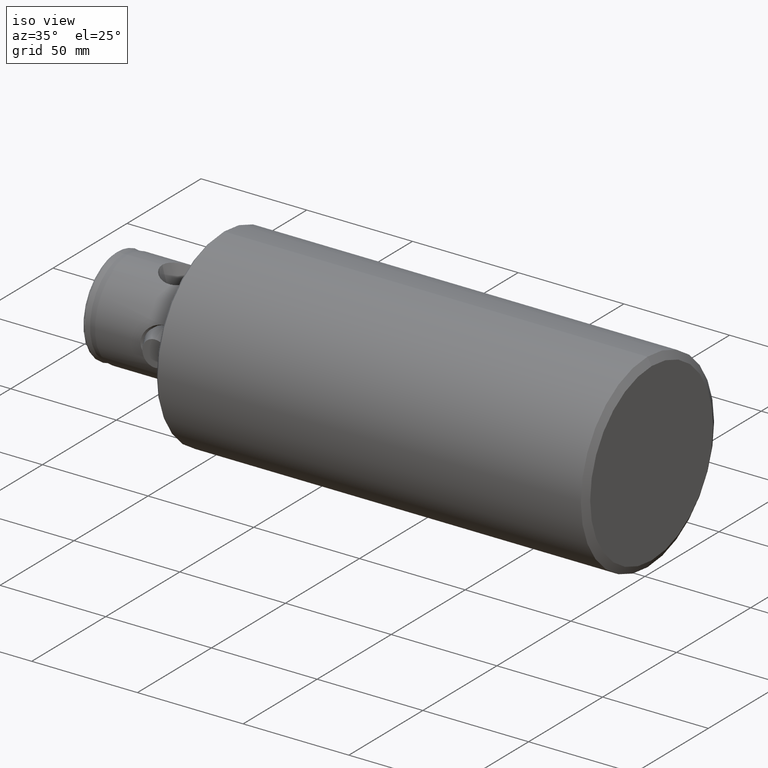
[diagram: clean part render]
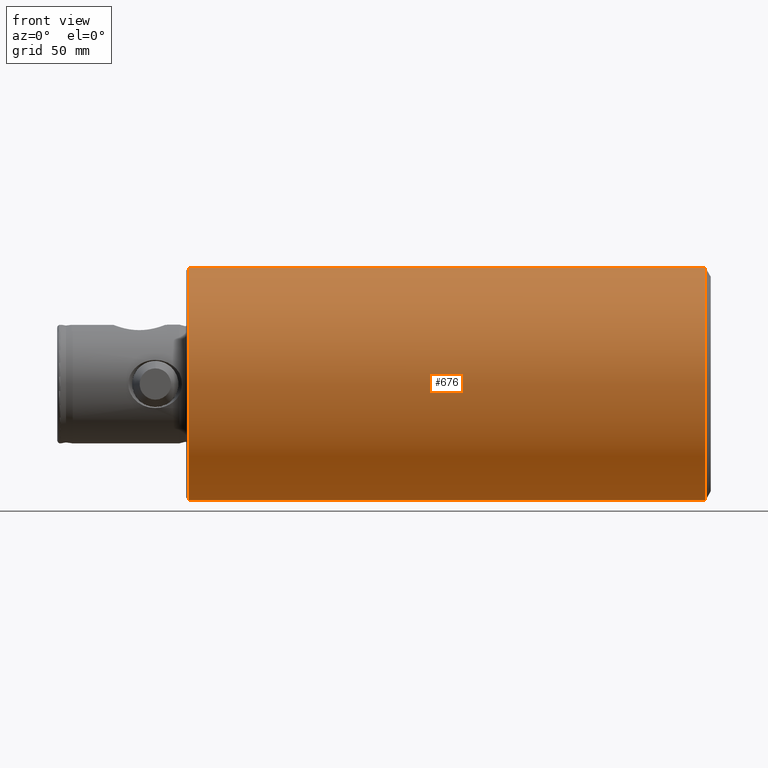
[diagram: tour spotlight — one face highlighted and labeled with its STEP entity id]
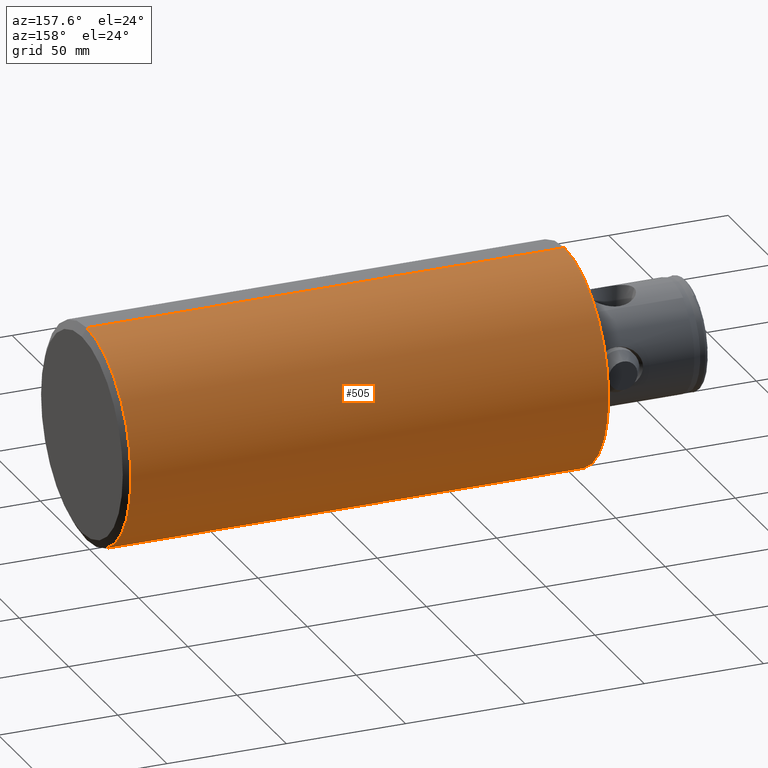
[diagram: tour spotlight — one face highlighted and labeled with its STEP entity id]
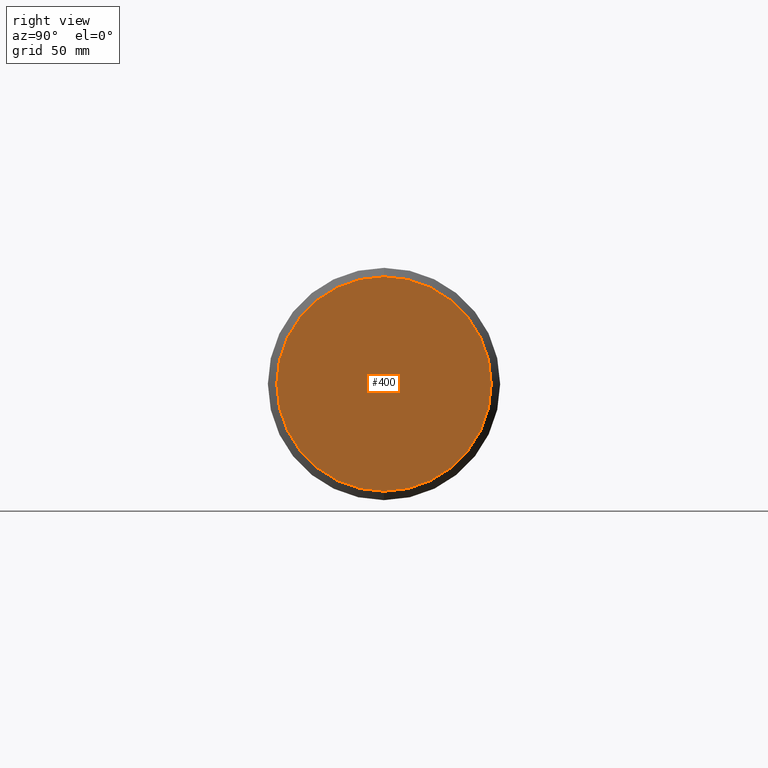
[diagram: tour spotlight — one face highlighted and labeled with its STEP entity id]
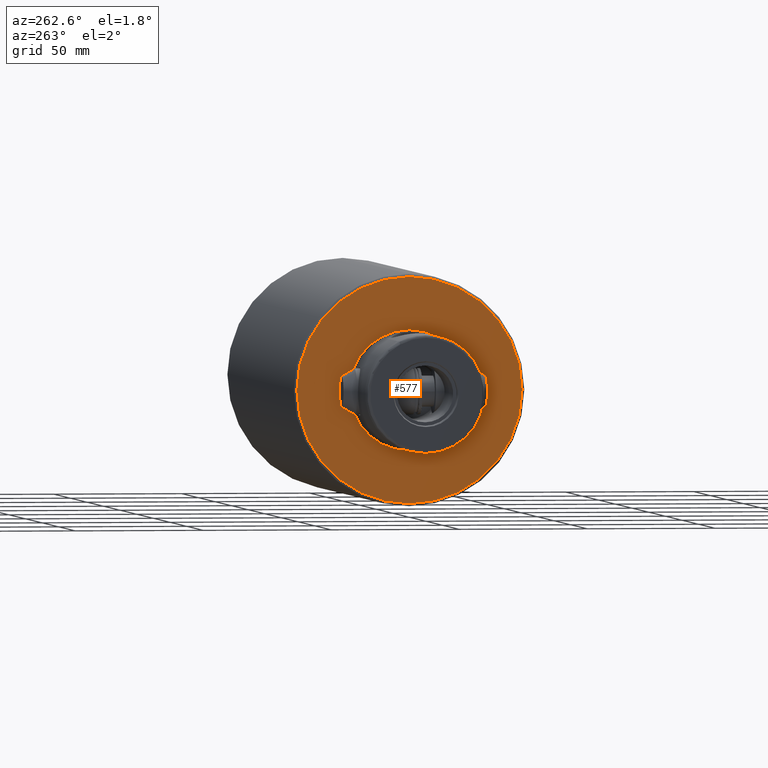
[diagram: tour spotlight — one face highlighted and labeled with its STEP entity id]
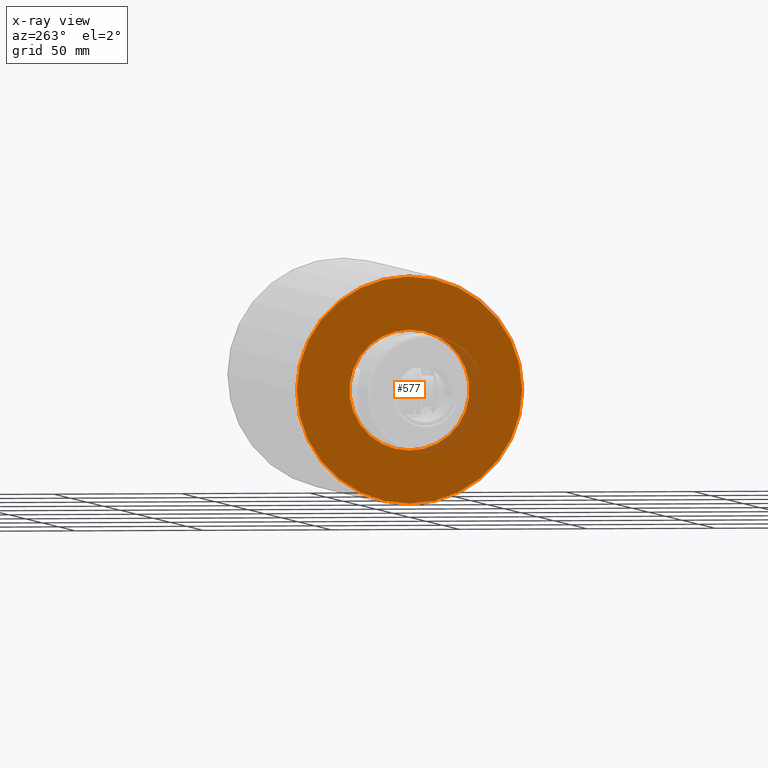
[diagram: x-ray of the same camera — body ghosted, this tour face saturated]
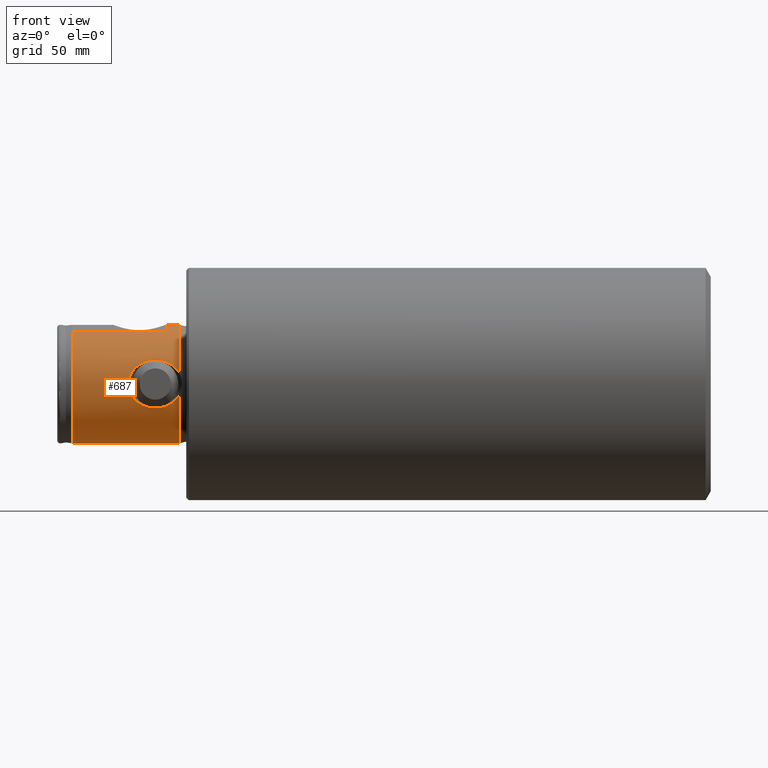
[diagram: tour spotlight — one face highlighted and labeled with its STEP entity id]
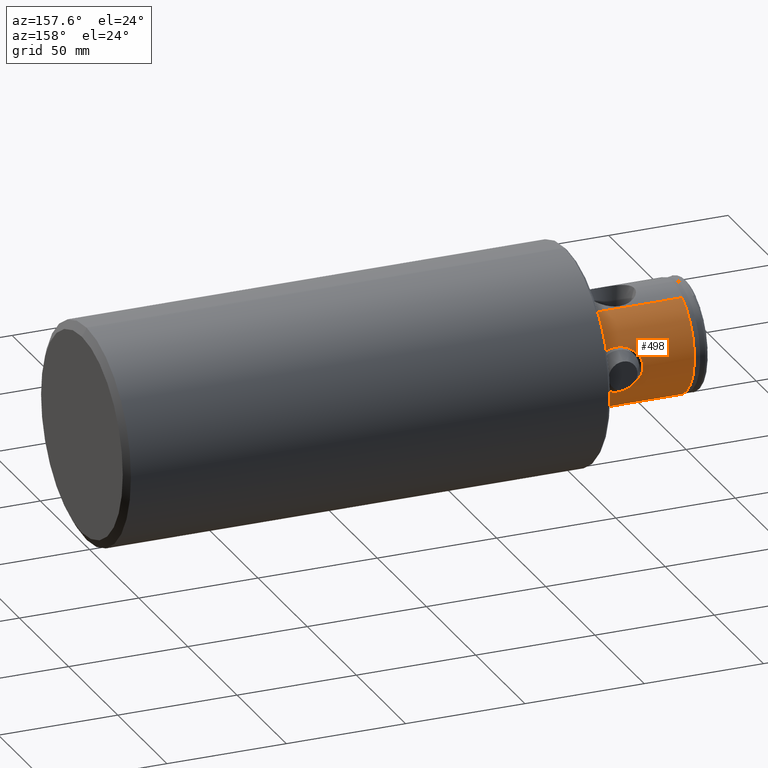
[diagram: tour spotlight — one face highlighted and labeled with its STEP entity id]
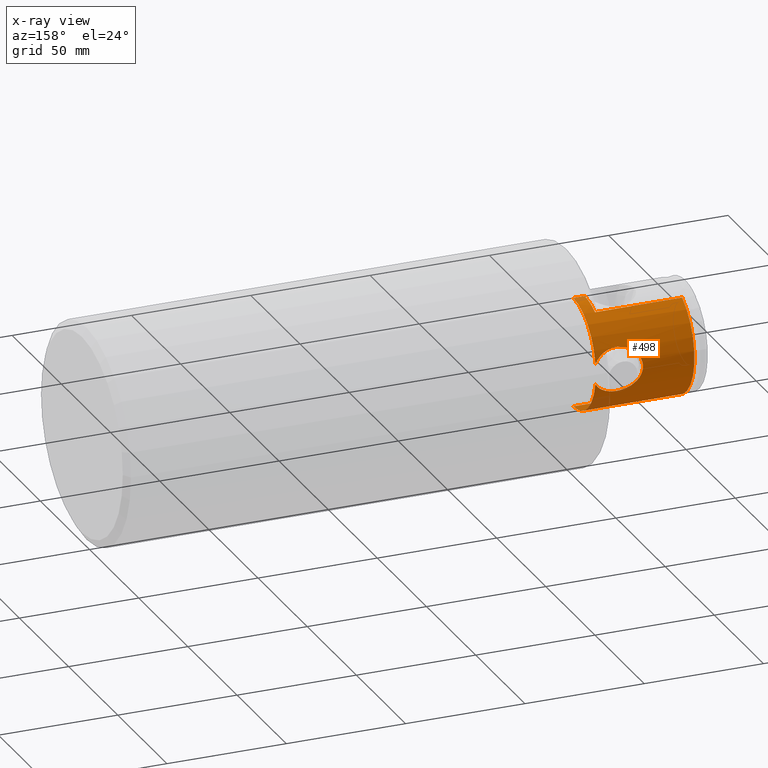
[diagram: x-ray of the same camera — body ghosted, this tour face saturated]
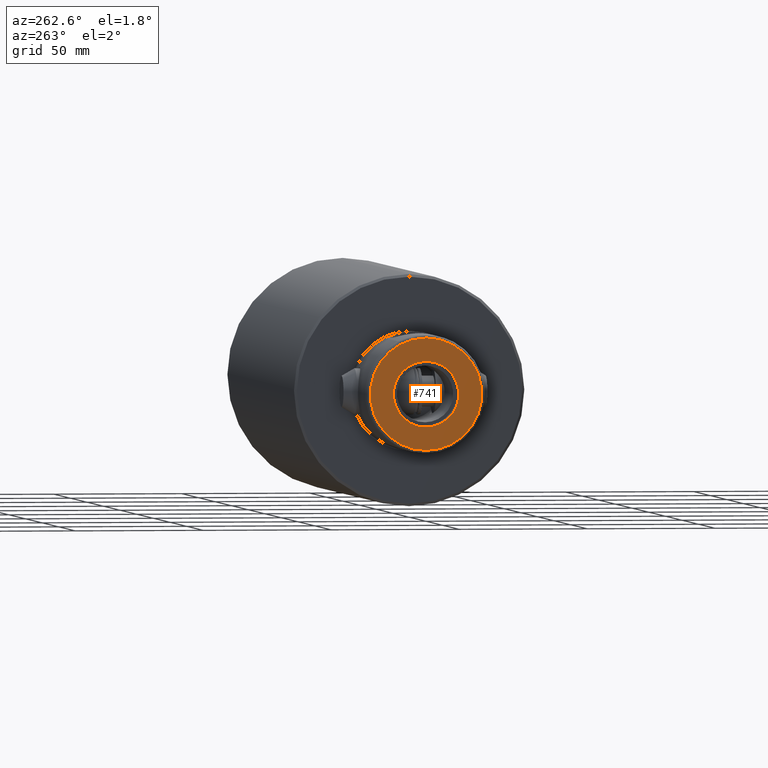
[diagram: tour spotlight — one face highlighted and labeled with its STEP entity id]
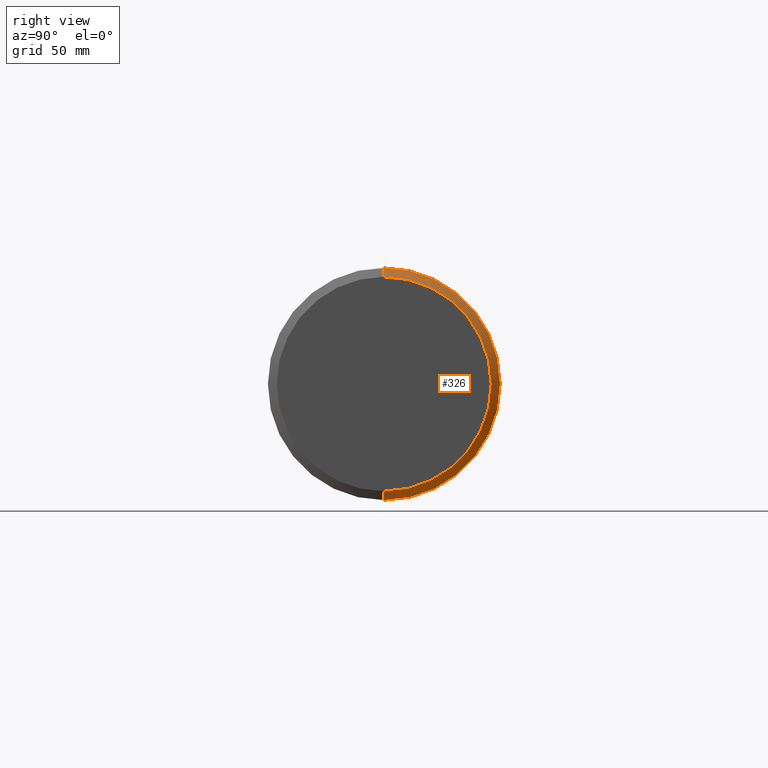
[diagram: tour spotlight — one face highlighted and labeled with its STEP entity id]
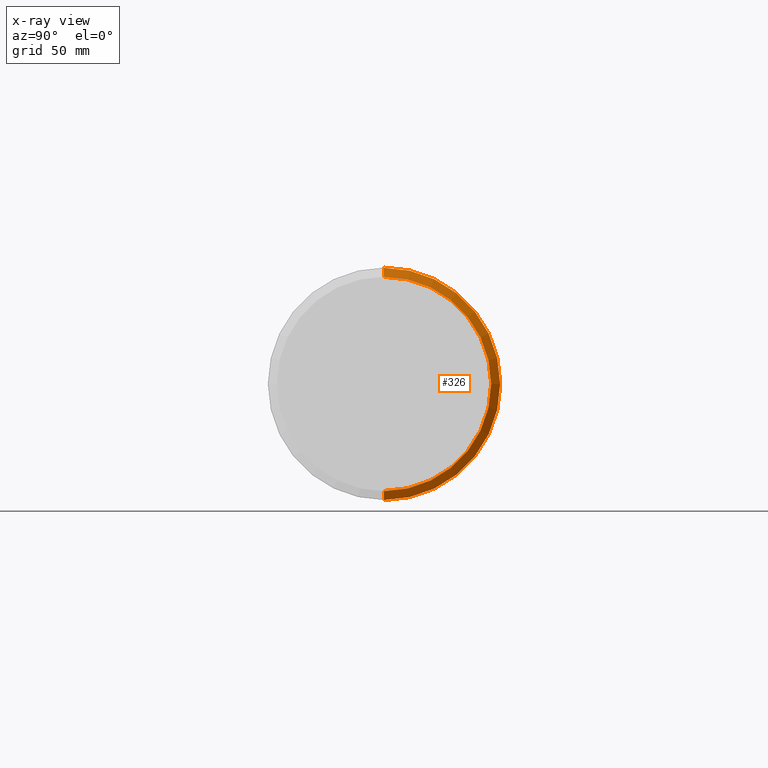
[diagram: x-ray of the same camera — body ghosted, this tour face saturated]
A machine part: a face-by-face anatomy tour. The part has 81 B-rep faces; the first image is the clean iso view, then the 8 largest visible faces are spotlighted one at a time (largest first), each with its STEP entity span.

Face 1 — front view, entity #676. In plain terms, the highlighted cylindrical surface (partial cylindrical patch) has radius 45 mm, axis along (-1, -0, -0).
Definition (entity closure, byte-faithful):
#297 = VERTEX_POINT ( 'NONE', #1563 ) ;
#302 = VERTEX_POINT ( 'NONE', #1634 ) ;
#306 = VERTEX_POINT ( 'NONE', #1632 ) ;
#393 = VERTEX_POINT ( 'NONE', #1821 ) ;
#433 = EDGE_CURVE ( 'NONE', #297, #306, #1940, .T. ) ;
#441 = EDGE_CURVE ( 'NONE', #302, #393, #1934, .T. ) ;
#618 = ORIENTED_EDGE ( 'NONE', *, *, #620, .F. ) ;
#620 = EDGE_CURVE ( 'NONE', #393, #306, #2262, .T. ) ;
#622 = ORIENTED_EDGE ( 'NONE', *, *, #433, .T. ) ;
#629 = ORIENTED_EDGE ( 'NONE', *, *, #630, .T. ) ;
#630 = EDGE_CURVE ( 'NONE', #302, #297, #2290, .T. ) ;
#631 = EDGE_LOOP ( 'NONE', ( #677, #629, #622, #618 ) ) ;
#676 = ADVANCED_FACE ( 'NONE', ( #2436 ), #2345, .T. ) ;
#677 = ORIENTED_EDGE ( 'NONE', *, *, #441, .F. ) ;
#1563 = CARTESIAN_POINT ( 'NONE',  ( 251.1999999999999300, 0.0000000000000000000, 45.00000000000005700 ) ) ;
#1632 = CARTESIAN_POINT ( 'NONE',  ( 50.99999999999999300, 0.0000000000000000000, 45.00000000000000000 ) ) ;
#1634 = CARTESIAN_POINT ( 'NONE',  ( 251.1999999999999300, 5.510728592200705600E-015, -45.00000000000006400 ) ) ;
#1821 = CARTESIAN_POINT ( 'NONE',  ( 50.99999999999999300, 5.510728592200697700E-015, -45.00000000000000000 ) ) ;
#1887 = DIRECTION ( 'NONE',  ( -1.000000000000000000, -0.0000000000000000000, -0.0000000000000000000 ) ) ;
#1896 = VECTOR ( 'NONE', #1919, 1000.000000000000000 ) ;
#1897 = CARTESIAN_POINT ( 'NONE',  ( 0.0000000000000000000, 0.0000000000000000000, 45.00000000000000000 ) ) ;
#1919 = DIRECTION ( 'NONE',  ( -1.000000000000000000, -0.0000000000000000000, -0.0000000000000000000 ) ) ;
#1932 = VECTOR ( 'NONE', #1887, 1000.000000000000000 ) ;
#1933 = CARTESIAN_POINT ( 'NONE',  ( 0.0000000000000000000, 5.510728592200697700E-015, -45.00000000000000000 ) ) ;
#1934 = LINE ( 'NONE', #1933, #1932 ) ;
#1940 = LINE ( 'NONE', #1897, #1896 ) ;
#2251 = AXIS2_PLACEMENT_3D ( 'NONE', #2282, #2309, #2308 ) ;
#2262 = CIRCLE ( 'NONE', #2251, 45.00000000000000000 ) ;
#2282 = CARTESIAN_POINT ( 'NONE',  ( 50.99999999999999300, 0.0000000000000000000, 0.0000000000000000000 ) ) ;
#2287 = DIRECTION ( 'NONE',  ( -1.000000000000000000, -0.0000000000000000000, -0.0000000000000000000 ) ) ;
#2288 = CARTESIAN_POINT ( 'NONE',  ( 251.1999999999999300, 0.0000000000000000000, 0.0000000000000000000 ) ) ;
#2289 = AXIS2_PLACEMENT_3D ( 'NONE', #2288, #2287, #2296 ) ;
#2290 = CIRCLE ( 'NONE', #2289, 45.00000000000005700 ) ;
#2296 = DIRECTION ( 'NONE',  ( 0.0000000000000000000, 0.0000000000000000000, 1.000000000000000000 ) ) ;
#2308 = DIRECTION ( 'NONE',  ( 0.0000000000000000000, 0.0000000000000000000, 1.000000000000000000 ) ) ;
#2309 = DIRECTION ( 'NONE',  ( -1.000000000000000000, -0.0000000000000000000, -0.0000000000000000000 ) ) ;
#2345 = CYLINDRICAL_SURFACE ( 'NONE', #2417, 45.00000000000000000 ) ;
#2415 = DIRECTION ( 'NONE',  ( 0.0000000000000000000, 0.0000000000000000000, 1.000000000000000000 ) ) ;
#2416 = DIRECTION ( 'NONE',  ( -1.000000000000000000, -0.0000000000000000000, -0.0000000000000000000 ) ) ;
#2417 = AXIS2_PLACEMENT_3D ( 'NONE', #2472, #2416, #2415 ) ;
#2436 = FACE_OUTER_BOUND ( 'NONE', #631, .T. ) ;
#2472 = CARTESIAN_POINT ( 'NONE',  ( 0.0000000000000000000, 0.0000000000000000000, 0.0000000000000000000 ) ) ;

Face 2 — auxiliary view, entity #505. In plain terms, the highlighted cylindrical surface (partial cylindrical patch) has radius 45 mm, axis along (-1, -0, -0).
Definition (entity closure, byte-faithful):
#296 = EDGE_CURVE ( 'NONE', #297, #302, #1566, .T. ) ;
#297 = VERTEX_POINT ( 'NONE', #1563 ) ;
#302 = VERTEX_POINT ( 'NONE', #1634 ) ;
#306 = VERTEX_POINT ( 'NONE', #1632 ) ;
#308 = EDGE_CURVE ( 'NONE', #306, #393, #1582, .T. ) ;
#393 = VERTEX_POINT ( 'NONE', #1821 ) ;
#433 = EDGE_CURVE ( 'NONE', #297, #306, #1940, .T. ) ;
#441 = EDGE_CURVE ( 'NONE', #302, #393, #1934, .T. ) ;
#456 = ORIENTED_EDGE ( 'NONE', *, *, #308, .F. ) ;
#485 = ORIENTED_EDGE ( 'NONE', *, *, #296, .T. ) ;
#504 = ORIENTED_EDGE ( 'NONE', *, *, #433, .F. ) ;
#505 = ADVANCED_FACE ( 'NONE', ( #3306 ), #3377, .T. ) ;
#533 = ORIENTED_EDGE ( 'NONE', *, *, #441, .T. ) ;
#535 = EDGE_LOOP ( 'NONE', ( #485, #533, #456, #504 ) ) ;
#1493 = DIRECTION ( 'NONE',  ( 0.0000000000000000000, 0.0000000000000000000, 1.000000000000000000 ) ) ;
#1494 = DIRECTION ( 'NONE',  ( -1.000000000000000000, -0.0000000000000000000, -0.0000000000000000000 ) ) ;
#1495 = CARTESIAN_POINT ( 'NONE',  ( 251.1999999999999300, 0.0000000000000000000, 0.0000000000000000000 ) ) ;
#1563 = CARTESIAN_POINT ( 'NONE',  ( 251.1999999999999300, 0.0000000000000000000, 45.00000000000005700 ) ) ;
#1565 = AXIS2_PLACEMENT_3D ( 'NONE', #1495, #1494, #1493 ) ;
#1566 = CIRCLE ( 'NONE', #1565, 45.00000000000005700 ) ;
#1578 = DIRECTION ( 'NONE',  ( 0.0000000000000000000, 0.0000000000000000000, 1.000000000000000000 ) ) ;
#1579 = DIRECTION ( 'NONE',  ( -1.000000000000000000, -0.0000000000000000000, -0.0000000000000000000 ) ) ;
#1580 = CARTESIAN_POINT ( 'NONE',  ( 50.99999999999999300, 0.0000000000000000000, 0.0000000000000000000 ) ) ;
#1581 = AXIS2_PLACEMENT_3D ( 'NONE', #1580, #1579, #1578 ) ;
#1582 = CIRCLE ( 'NONE', #1581, 45.00000000000000000 ) ;
#1632 = CARTESIAN_POINT ( 'NONE',  ( 50.99999999999999300, 0.0000000000000000000, 45.00000000000000000 ) ) ;
#1634 = CARTESIAN_POINT ( 'NONE',  ( 251.1999999999999300, 5.510728592200705600E-015, -45.00000000000006400 ) ) ;
#1821 = CARTESIAN_POINT ( 'NONE',  ( 50.99999999999999300, 5.510728592200697700E-015, -45.00000000000000000 ) ) ;
#1887 = DIRECTION ( 'NONE',  ( -1.000000000000000000, -0.0000000000000000000, -0.0000000000000000000 ) ) ;
#1896 = VECTOR ( 'NONE', #1919, 1000.000000000000000 ) ;
#1897 = CARTESIAN_POINT ( 'NONE',  ( 0.0000000000000000000, 0.0000000000000000000, 45.00000000000000000 ) ) ;
#1919 = DIRECTION ( 'NONE',  ( -1.000000000000000000, -0.0000000000000000000, -0.0000000000000000000 ) ) ;
#1932 = VECTOR ( 'NONE', #1887, 1000.000000000000000 ) ;
#1933 = CARTESIAN_POINT ( 'NONE',  ( 0.0000000000000000000, 5.510728592200697700E-015, -45.00000000000000000 ) ) ;
#1934 = LINE ( 'NONE', #1933, #1932 ) ;
#1940 = LINE ( 'NONE', #1897, #1896 ) ;
#3305 = CARTESIAN_POINT ( 'NONE',  ( 0.0000000000000000000, 0.0000000000000000000, 0.0000000000000000000 ) ) ;
#3306 = FACE_OUTER_BOUND ( 'NONE', #535, .T. ) ;
#3374 = DIRECTION ( 'NONE',  ( 0.0000000000000000000, 0.0000000000000000000, 1.000000000000000000 ) ) ;
#3375 = DIRECTION ( 'NONE',  ( -1.000000000000000000, -0.0000000000000000000, -0.0000000000000000000 ) ) ;
#3376 = AXIS2_PLACEMENT_3D ( 'NONE', #3305, #3375, #3374 ) ;
#3377 = CYLINDRICAL_SURFACE ( 'NONE', #3376, 45.00000000000000000 ) ;

Face 3 — right view, entity #400. In plain terms, the highlighted planar face has unit normal (-1, 0, 0).
Definition (entity closure, byte-faithful):
#214 = ORIENTED_EDGE ( 'NONE', *, *, #298, .F. ) ;
#282 = EDGE_CURVE ( 'NONE', #299, #328, #1567, .T. ) ;
#298 = EDGE_CURVE ( 'NONE', #328, #299, #1576, .T. ) ;
#299 = VERTEX_POINT ( 'NONE', #1577 ) ;
#328 = VERTEX_POINT ( 'NONE', #1558 ) ;
#353 = ORIENTED_EDGE ( 'NONE', *, *, #282, .F. ) ;
#399 = EDGE_LOOP ( 'NONE', ( #214, #353 ) ) ;
#400 = ADVANCED_FACE ( 'NONE', ( #1858 ), #1786, .F. ) ;
#1518 = DIRECTION ( 'NONE',  ( 0.0000000000000000000, 0.0000000000000000000, 1.000000000000000000 ) ) ;
#1519 = DIRECTION ( 'NONE',  ( -1.000000000000000000, -0.0000000000000000000, -0.0000000000000000000 ) ) ;
#1520 = CARTESIAN_POINT ( 'NONE',  ( 253.1999999999999900, 0.0000000000000000000, 0.0000000000000000000 ) ) ;
#1521 = AXIS2_PLACEMENT_3D ( 'NONE', #1520, #1519, #1518 ) ;
#1545 = DIRECTION ( 'NONE',  ( 0.0000000000000000000, 0.0000000000000000000, 1.000000000000000000 ) ) ;
#1546 = DIRECTION ( 'NONE',  ( -1.000000000000000000, -0.0000000000000000000, -0.0000000000000000000 ) ) ;
#1558 = CARTESIAN_POINT ( 'NONE',  ( 253.1999999999999900, 0.0000000000000000000, 41.53589838486234200 ) ) ;
#1567 = CIRCLE ( 'NONE', #1631, 41.53589838486234200 ) ;
#1576 = CIRCLE ( 'NONE', #1521, 41.53589838486234200 ) ;
#1577 = CARTESIAN_POINT ( 'NONE',  ( 253.1999999999999900, 5.298620549791504100E-015, -41.53589838486234200 ) ) ;
#1630 = CARTESIAN_POINT ( 'NONE',  ( 253.1999999999999900, 0.0000000000000000000, 0.0000000000000000000 ) ) ;
#1631 = AXIS2_PLACEMENT_3D ( 'NONE', #1630, #1546, #1545 ) ;
#1724 = DIRECTION ( 'NONE',  ( -0.0000000000000000000, 0.0000000000000000000, 1.000000000000000000 ) ) ;
#1725 = DIRECTION ( 'NONE',  ( -1.000000000000000000, 0.0000000000000000000, -0.0000000000000000000 ) ) ;
#1726 = CARTESIAN_POINT ( 'NONE',  ( 253.1999999999999900, 6.201406575756518900E-014, 0.0000000000000000000 ) ) ;
#1727 = AXIS2_PLACEMENT_3D ( 'NONE', #1726, #1725, #1724 ) ;
#1786 = PLANE ( 'NONE',  #1727 ) ;
#1858 = FACE_OUTER_BOUND ( 'NONE', #399, .T. ) ;

Face 4 — auxiliary view, entity #577. An x-ray twin of the same camera follows (body ghosted, this face saturated) — the face is partly hidden behind the body. In plain terms, the highlighted planar face has unit normal (1, 0, 0).
Definition (entity closure, byte-faithful):
#305 = VERTEX_POINT ( 'NONE', #1633 ) ;
#309 = EDGE_CURVE ( 'NONE', #312, #437, #1620, .T. ) ;
#312 = VERTEX_POINT ( 'NONE', #1543 ) ;
#426 = VERTEX_POINT ( 'NONE', #1810 ) ;
#437 = VERTEX_POINT ( 'NONE', #1951 ) ;
#438 = EDGE_CURVE ( 'NONE', #305, #426, #1947, .T. ) ;
#572 = ORIENTED_EDGE ( 'NONE', *, *, #576, .F. ) ;
#575 = EDGE_LOOP ( 'NONE', ( #572, #652 ) ) ;
#576 = EDGE_CURVE ( 'NONE', #437, #312, #2175, .T. ) ;
#577 = ADVANCED_FACE ( 'NONE', ( #2128, #2171 ), #2168, .F. ) ;
#578 = ORIENTED_EDGE ( 'NONE', *, *, #438, .T. ) ;
#621 = EDGE_CURVE ( 'NONE', #426, #305, #2291, .T. ) ;
#652 = ORIENTED_EDGE ( 'NONE', *, *, #309, .F. ) ;
#660 = EDGE_LOOP ( 'NONE', ( #710, #578 ) ) ;
#710 = ORIENTED_EDGE ( 'NONE', *, *, #621, .T. ) ;
#1543 = CARTESIAN_POINT ( 'NONE',  ( 49.99999999999998600, 2.869538338652060700E-015, -23.43233259973981900 ) ) ;
#1617 = DIRECTION ( 'NONE',  ( 0.0000000000000000000, 0.0000000000000000000, 1.000000000000000000 ) ) ;
#1618 = DIRECTION ( 'NONE',  ( -1.000000000000000000, -0.0000000000000000000, -0.0000000000000000000 ) ) ;
#1619 = AXIS2_PLACEMENT_3D ( 'NONE', #1625, #1618, #1617 ) ;
#1620 = CIRCLE ( 'NONE', #1619, 23.43233259973981900 ) ;
#1625 = CARTESIAN_POINT ( 'NONE',  ( 49.99999999999998600, 0.0000000000000000000, 0.0000000000000000000 ) ) ;
#1633 = CARTESIAN_POINT ( 'NONE',  ( 49.99999999999998600, 5.449498274509578800E-015, 44.00000000000000000 ) ) ;
#1810 = CARTESIAN_POINT ( 'NONE',  ( 49.99999999999998600, 0.0000000000000000000, -44.00000000000000000 ) ) ;
#1943 = DIRECTION ( 'NONE',  ( 0.0000000000000000000, 0.0000000000000000000, 1.000000000000000000 ) ) ;
#1944 = DIRECTION ( 'NONE',  ( -1.000000000000000000, -0.0000000000000000000, -0.0000000000000000000 ) ) ;
#1945 = CARTESIAN_POINT ( 'NONE',  ( 49.99999999999998600, 0.0000000000000000000, 0.0000000000000000000 ) ) ;
#1946 = AXIS2_PLACEMENT_3D ( 'NONE', #1945, #1944, #1943 ) ;
#1947 = CIRCLE ( 'NONE', #1946, 44.00000000000000000 ) ;
#1951 = CARTESIAN_POINT ( 'NONE',  ( 49.99999999999998600, 0.0000000000000000000, 23.43233259973981900 ) ) ;
#2128 = FACE_BOUND ( 'NONE', #575, .T. ) ;
#2134 = CARTESIAN_POINT ( 'NONE',  ( 49.99999999999998600, 0.0000000000000000000, 0.0000000000000000000 ) ) ;
#2140 = DIRECTION ( 'NONE',  ( 0.0000000000000000000, 0.0000000000000000000, -1.000000000000000000 ) ) ;
#2141 = DIRECTION ( 'NONE',  ( 1.000000000000000000, 0.0000000000000000000, 0.0000000000000000000 ) ) ;
#2168 = PLANE ( 'NONE',  #2170 ) ;
#2169 = CARTESIAN_POINT ( 'NONE',  ( 49.99999999999998600, 23.43233259973981900, 0.0000000000000000000 ) ) ;
#2170 = AXIS2_PLACEMENT_3D ( 'NONE', #2169, #2141, #2140 ) ;
#2171 = FACE_OUTER_BOUND ( 'NONE', #660, .T. ) ;
#2172 = DIRECTION ( 'NONE',  ( 0.0000000000000000000, 0.0000000000000000000, 1.000000000000000000 ) ) ;
#2173 = DIRECTION ( 'NONE',  ( -1.000000000000000000, -0.0000000000000000000, -0.0000000000000000000 ) ) ;
#2174 = AXIS2_PLACEMENT_3D ( 'NONE', #2134, #2173, #2172 ) ;
#2175 = CIRCLE ( 'NONE', #2174, 23.43233259973981900 ) ;
#2266 = DIRECTION ( 'NONE',  ( -1.000000000000000000, -0.0000000000000000000, -0.0000000000000000000 ) ) ;
#2267 = CARTESIAN_POINT ( 'NONE',  ( 49.99999999999998600, 0.0000000000000000000, 0.0000000000000000000 ) ) ;
#2268 = AXIS2_PLACEMENT_3D ( 'NONE', #2267, #2266, #2326 ) ;
#2291 = CIRCLE ( 'NONE', #2268, 44.00000000000000000 ) ;
#2326 = DIRECTION ( 'NONE',  ( 0.0000000000000000000, 0.0000000000000000000, 1.000000000000000000 ) ) ;

Face 5 — front view, entity #687. In plain terms, the highlighted cylindrical surface (partial cylindrical patch) has radius 23 mm, axis along (-1, -0, -0).
Definition (entity closure, byte-faithful):
#217 = VERTEX_POINT ( 'NONE', #1175 ) ;
#220 = VERTEX_POINT ( 'NONE', #1190 ) ;
#221 = EDGE_CURVE ( 'NONE', #220, #217, #1214, .T. ) ;
#222 = VERTEX_POINT ( 'NONE', #1216 ) ;
#223 = VERTEX_POINT ( 'NONE', #1215 ) ;
#227 = EDGE_CURVE ( 'NONE', #223, #222, #1225, .T. ) ;
#517 = VERTEX_POINT ( 'NONE', #1995 ) ;
#523 = VERTEX_POINT ( 'NONE', #1963 ) ;
#554 = EDGE_CURVE ( 'NONE', #762, #523, #2088, .T. ) ;
#642 = ORIENTED_EDGE ( 'NONE', *, *, #221, .T. ) ;
#663 = ORIENTED_EDGE ( 'NONE', *, *, #713, .T. ) ;
#664 = ORIENTED_EDGE ( 'NONE', *, *, #692, .F. ) ;
#669 = VERTEX_POINT ( 'NONE', #2454 ) ;
#670 = ORIENTED_EDGE ( 'NONE', *, *, #671, .F. ) ;
#671 = EDGE_CURVE ( 'NONE', #523, #700, #2455, .T. ) ;
#684 = EDGE_LOOP ( 'NONE', ( #685, #689, #716, #719, #642, #693, #694, #663, #664, #670 ) ) ;
#685 = ORIENTED_EDGE ( 'NONE', *, *, #554, .F. ) ;
#687 = ADVANCED_FACE ( 'NONE', ( #2439 ), #2422, .T. ) ;
#689 = ORIENTED_EDGE ( 'NONE', *, *, #690, .T. ) ;
#690 = EDGE_CURVE ( 'NONE', #762, #223, #2418, .T. ) ;
#692 = EDGE_CURVE ( 'NONE', #700, #669, #2366, .T. ) ;
#693 = ORIENTED_EDGE ( 'NONE', *, *, #701, .T. ) ;
#694 = ORIENTED_EDGE ( 'NONE', *, *, #714, .T. ) ;
#700 = VERTEX_POINT ( 'NONE', #2477 ) ;
#701 = EDGE_CURVE ( 'NONE', #217, #760, #2370, .T. ) ;
#713 = EDGE_CURVE ( 'NONE', #517, #669, #2434, .T. ) ;
#714 = EDGE_CURVE ( 'NONE', #760, #517, #2444, .T. ) ;
#716 = ORIENTED_EDGE ( 'NONE', *, *, #227, .T. ) ;
#719 = ORIENTED_EDGE ( 'NONE', *, *, #720, .T. ) ;
#720 = EDGE_CURVE ( 'NONE', #222, #220, #2451, .T. ) ;
#760 = VERTEX_POINT ( 'NONE', #2578 ) ;
#762 = VERTEX_POINT ( 'NONE', #2577 ) ;
#1175 = CARTESIAN_POINT ( 'NONE',  ( 47.31994326666491400, -22.60442801480920800, 4.247332589203312900 ) ) ;
#1190 = CARTESIAN_POINT ( 'NONE',  ( 37.99999999999999300, -21.02302948290293100, 9.329106675400030500 ) ) ;
#1201 = CARTESIAN_POINT ( 'NONE',  ( 38.93219336601070100, -21.03538554364934000, 9.301414064695467900 ) ) ;
#1202 = CARTESIAN_POINT ( 'NONE',  ( 38.46619726099965700, -21.02302948290293500, 9.329106675400035800 ) ) ;
#1203 = CARTESIAN_POINT ( 'NONE',  ( 37.99999999999999300, -21.02302948290293100, 9.329106675400030500 ) ) ;
#1214 = B_SPLINE_CURVE_WITH_KNOTS ( 'NONE', 3,
 ( #1203, #1202, #1201, #1246, #1245, #1244, #1243, #1242, #1241, #1240, #1239, #1238, #1237, #1236, #1235, #1234 ),
 .UNSPECIFIED., .F., .F.,
 ( 4, 2, 2, 2, 2, 2, 2, 4 ),
 ( 0.02345269837733418900, 0.02485111393181970200, 0.02624952948630521200, 0.02764794504079072500, 0.02904636059527623800, 0.03184319170424727800, 0.03324160725873279200, 0.03464002281321830500 ),
 .UNSPECIFIED. ) ;
#1215 = CARTESIAN_POINT ( 'NONE',  ( 47.31994326667239600, -22.60442801481164900, -4.247332589190292200 ) ) ;
#1216 = CARTESIAN_POINT ( 'NONE',  ( 37.99999999999999300, -21.02302948290293500, -9.329106675400032200 ) ) ;
#1225 = B_SPLINE_CURVE_WITH_KNOTS ( 'NONE', 3,
 ( #1261, #1285, #1266, #1253, #1252, #1256, #1268, #1267, #1260, #1265, #1264, #1263, #1262, #1259, #1258, #1257 ),
 .UNSPECIFIED., .F., .F.,
 ( 4, 2, 2, 2, 2, 2, 2, 4 ),
 ( 0.04352184889243164400, 0.04491540207815871600, 0.04630895526388578700, 0.04770250844961285800, 0.04909606163533993000, 0.05048961482106699400, 0.05188316800679406600, 0.05467027437824818800 ),
 .UNSPECIFIED. ) ;
#1234 = CARTESIAN_POINT ( 'NONE',  ( 47.31994326666491400, -22.60442801480920800, 4.247332589203312900 ) ) ;
#1235 = CARTESIAN_POINT ( 'NONE',  ( 47.09117652985198500, -22.52966422668212900, 4.645227651890146500 ) ) ;
#1236 = CARTESIAN_POINT ( 'NONE',  ( 46.83312668181601900, -22.44764819693650200, 5.024012716933397900 ) ) ;
#1237 = CARTESIAN_POINT ( 'NONE',  ( 46.26015209294288900, -22.27395163920986200, 5.745319114503146800 ) ) ;
#1238 = CARTESIAN_POINT ( 'NONE',  ( 45.94325045027338200, -22.18179861106122200, 6.088966382107917900 ) ) ;
#1239 = CARTESIAN_POINT ( 'NONE',  ( 44.94050913163979300, -21.90766243087735500, 7.034566917102954300 ) ) ;
#1240 = CARTESIAN_POINT ( 'NONE',  ( 44.19541750824311800, -21.72519002430095400, 7.565355621504313200 ) ) ;
#1241 = CARTESIAN_POINT ( 'NONE',  ( 42.96384847079258400, -21.48120669399792600, 8.222674795204524000 ) ) ;
#1242 = CARTESIAN_POINT ( 'NONE',  ( 42.54073490052644500, -21.40625954799838100, 8.414482499755486300 ) ) ;
#1243 = CARTESIAN_POINT ( 'NONE',  ( 41.67656531208709900, -21.27393331825578600, 8.743639101962612500 ) ) ;
#1244 = CARTESIAN_POINT ( 'NONE',  ( 41.23445744929128400, -21.21633876873586300, 8.881531672819260600 ) ) ;
#1245 = CARTESIAN_POINT ( 'NONE',  ( 40.32982575561659600, -21.12173547968730200, 9.104225718377939800 ) ) ;
#1246 = CARTESIAN_POINT ( 'NONE',  ( 39.86377557585608900, -21.08460747206793700, 9.189291393883605600 ) ) ;
#1252 = CARTESIAN_POINT ( 'NONE',  ( 45.93966587812343500, -22.18078657391648200, -6.092606297049838000 ) ) ;
#1253 = CARTESIAN_POINT ( 'NONE',  ( 46.25122867858282700, -22.27131297876147900, -5.755614247327033100 ) ) ;
#1256 = CARTESIAN_POINT ( 'NONE',  ( 45.27237314259004800, -21.99842200163292500, -6.721352093630998500 ) ) ;
#1257 = CARTESIAN_POINT ( 'NONE',  ( 37.99999999999999300, -21.02302948290293500, -9.329106675400032200 ) ) ;
#1258 = CARTESIAN_POINT ( 'NONE',  ( 38.94410806159628900, -21.02302948290293800, -9.329106675400030500 ) ) ;
#1259 = CARTESIAN_POINT ( 'NONE',  ( 39.86807646693624500, -21.07382885779066200, -9.216915442110504800 ) ) ;
#1260 = CARTESIAN_POINT ( 'NONE',  ( 43.77045346099321000, -21.64086843575121600, -7.792681230712173800 ) ) ;
#1261 = CARTESIAN_POINT ( 'NONE',  ( 47.31994326667239600, -22.60442801481164900, -4.247332589190292200 ) ) ;
#1262 = CARTESIAN_POINT ( 'NONE',  ( 41.22216663415233700, -21.21486623906266900, -8.885037912541241300 ) ) ;
#1263 = CARTESIAN_POINT ( 'NONE',  ( 41.67137822948839000, -21.27318864679584800, -8.745464492953633600 ) ) ;
#1264 = CARTESIAN_POINT ( 'NONE',  ( 42.53961563051984000, -21.40603891627919700, -8.415058069580801700 ) ) ;
#1265 = CARTESIAN_POINT ( 'NONE',  ( 42.95930464578408000, -21.48044260649168500, -8.224576149942532100 ) ) ;
#1266 = CARTESIAN_POINT ( 'NONE',  ( 46.82741385150361400, -22.44585156441317500, -5.032119306049304800 ) ) ;
#1267 = CARTESIAN_POINT ( 'NONE',  ( 44.16192148421421800, -21.72690255488169700, -7.551288757119882800 ) ) ;
#1268 = CARTESIAN_POINT ( 'NONE',  ( 44.91553630357401500, -21.90630441512954000, -7.013849399182001700 ) ) ;
#1285 = CARTESIAN_POINT ( 'NONE',  ( 47.08987753996171900, -22.52923970078164800, -4.647486991125262500 ) ) ;
#1963 = CARTESIAN_POINT ( 'NONE',  ( 6.000000000000000000, 2.816594613791466100E-015, -22.99999999999998600 ) ) ;
#1995 = CARTESIAN_POINT ( 'NONE',  ( 42.50000000000000000, 0.0000000000000000000, 22.99999999999998900 ) ) ;
#2085 = DIRECTION ( 'NONE',  ( -1.000000000000000000, -0.0000000000000000000, -0.0000000000000000000 ) ) ;
#2086 = VECTOR ( 'NONE', #2085, 1000.000000000000000 ) ;
#2087 = CARTESIAN_POINT ( 'NONE',  ( 0.0000000000000000000, 2.816594613791466100E-015, -22.99999999999998900 ) ) ;
#2088 = LINE ( 'NONE', #2087, #2086 ) ;
#2112 = CARTESIAN_POINT ( 'NONE',  ( 37.67467929445299300, -21.02302948290294500, 9.329106675400034000 ) ) ;
#2113 = CARTESIAN_POINT ( 'NONE',  ( 37.34926045169535100, -21.02904338070736400, 9.315590198330813400 ) ) ;
#2123 = CARTESIAN_POINT ( 'NONE',  ( 37.99999999999999300, -21.02302948290293100, 9.329106675400030500 ) ) ;
#2334 = DIRECTION ( 'NONE',  ( 0.0000000000000000000, 0.0000000000000000000, 1.000000000000000000 ) ) ;
#2335 = DIRECTION ( 'NONE',  ( -1.000000000000000000, -0.0000000000000000000, -0.0000000000000000000 ) ) ;
#2336 = CARTESIAN_POINT ( 'NONE',  ( 6.000000000000000000, 0.0000000000000000000, 0.0000000000000000000 ) ) ;
#2337 = AXIS2_PLACEMENT_3D ( 'NONE', #2336, #2335, #2334 ) ;
#2339 = CARTESIAN_POINT ( 'NONE',  ( 47.31994326666491400, 0.0000000000000000000, 0.0000000000000000000 ) ) ;
#2347 = DIRECTION ( 'NONE',  ( 1.000000000000000000, 0.0000000000000000000, 0.0000000000000000000 ) ) ;
#2348 = VECTOR ( 'NONE', #2347, 1000.000000000000000 ) ;
#2349 = CARTESIAN_POINT ( 'NONE',  ( 0.0000000000000000000, -10.50000000000000000, 20.46338192968111300 ) ) ;
#2352 = DIRECTION ( 'NONE',  ( -1.000000000000000000, -0.0000000000000000000, -0.0000000000000000000 ) ) ;
#2353 = CARTESIAN_POINT ( 'NONE',  ( 0.0000000000000000000, 0.0000000000000000000, 0.0000000000000000000 ) ) ;
#2362 = DIRECTION ( 'NONE',  ( 0.0000000000000000000, 0.0000000000000000000, 1.000000000000000000 ) ) ;
#2363 = DIRECTION ( 'NONE',  ( -1.000000000000000000, -0.0000000000000000000, -0.0000000000000000000 ) ) ;
#2364 = CARTESIAN_POINT ( 'NONE',  ( 47.31994326666491400, 0.0000000000000000000, 0.0000000000000000000 ) ) ;
#2365 = AXIS2_PLACEMENT_3D ( 'NONE', #2364, #2363, #2362 ) ;
#2366 = LINE ( 'NONE', #2349, #2348 ) ;
#2367 = DIRECTION ( 'NONE',  ( 0.0000000000000000000, 0.0000000000000000000, 1.000000000000000000 ) ) ;
#2368 = DIRECTION ( 'NONE',  ( -1.000000000000000000, -0.0000000000000000000, -0.0000000000000000000 ) ) ;
#2369 = AXIS2_PLACEMENT_3D ( 'NONE', #2339, #2368, #2367 ) ;
#2370 = CIRCLE ( 'NONE', #2369, 22.99999999999999300 ) ;
#2385 = CARTESIAN_POINT ( 'NONE',  ( 36.69822406992789600, -21.05308807990714800, 9.261121344123521800 ) ) ;
#2386 = CARTESIAN_POINT ( 'NONE',  ( 36.37120823279914100, -21.07122888936861600, 9.219918385349206600 ) ) ;
#2387 = CARTESIAN_POINT ( 'NONE',  ( 35.39998326945026700, -21.14277504640236700, 9.055241084580817600 ) ) ;
#2388 = CARTESIAN_POINT ( 'NONE',  ( 34.77210464036043900, -21.21255598155631400, 8.892748959182583200 ) ) ;
#2389 = CARTESIAN_POINT ( 'NONE',  ( 33.85834670759243200, -21.34348862248444700, 8.571398500379171300 ) ) ;
#2390 = CARTESIAN_POINT ( 'NONE',  ( 33.55846634088093300, -21.39151247410070800, 8.451256365229980400 ) ) ;
#2391 = CARTESIAN_POINT ( 'NONE',  ( 32.96825497957615200, -21.49517057601162100, 8.184019916190951700 ) ) ;
#2392 = CARTESIAN_POINT ( 'NONE',  ( 32.67705798796485100, -21.55101693578773200, 8.036311123346985500 ) ) ;
#2393 = CARTESIAN_POINT ( 'NONE',  ( 31.83357783491359100, -21.72486292303570100, 7.559420660782887300 ) ) ;
#2394 = CARTESIAN_POINT ( 'NONE',  ( 31.30634380439214900, -21.84989007069774300, 7.195111343399609900 ) ) ;
#2395 = CARTESIAN_POINT ( 'NONE',  ( 30.56888459637243500, -22.04131034979981900, 6.574759988028477900 ) ) ;
#2396 = CARTESIAN_POINT ( 'NONE',  ( 30.33103363725489700, -22.10605344019972300, 6.354512261300782500 ) ) ;
#2397 = CARTESIAN_POINT ( 'NONE',  ( 29.87947400073054300, -22.23365425623983800, 5.892541318817851700 ) ) ;
#2398 = CARTESIAN_POINT ( 'NONE',  ( 29.66633803918195200, -22.29631722554484000, 5.651635319246516100 ) ) ;
#2399 = CARTESIAN_POINT ( 'NONE',  ( 29.26561079154685900, -22.41763984525953600, 5.149385145055092900 ) ) ;
#2400 = CARTESIAN_POINT ( 'NONE',  ( 29.07801527779107100, -22.47630363121442800, 4.888045158437270400 ) ) ;
#2401 = CARTESIAN_POINT ( 'NONE',  ( 28.72954003569505600, -22.58783317316477800, 4.343616342949869300 ) ) ;
#2402 = CARTESIAN_POINT ( 'NONE',  ( 28.56789879389732100, -22.64096007534570600, 4.058830409802394200 ) ) ;
#2403 = CARTESIAN_POINT ( 'NONE',  ( 28.13411307832687000, -22.78605615217954000, 3.185020368139582100 ) ) ;
#2404 = CARTESIAN_POINT ( 'NONE',  ( 27.91088036518950900, -22.86425977889280900, 2.575973568531907200 ) ) ;
#2405 = CARTESIAN_POINT ( 'NONE',  ( 27.68222849542476300, -22.94518811333196200, 1.618902779485936500 ) ) ;
#2406 = CARTESIAN_POINT ( 'NONE',  ( 27.62427475368554800, -22.96593789082250900, 1.292743308704329600 ) ) ;
#2407 = CARTESIAN_POINT ( 'NONE',  ( 27.54807650219822800, -22.99328354244361000, 0.6437393914532247900 ) ) ;
#2408 = CARTESIAN_POINT ( 'NONE',  ( 27.52921500374873500, -23.00009872422091900, 0.3186421900336501900 ) ) ;
#2409 = CARTESIAN_POINT ( 'NONE',  ( 27.52976871629866900, -22.99989911597083000, -0.3327383722122662100 ) ) ;
#2410 = CARTESIAN_POINT ( 'NONE',  ( 27.54918161106810000, -22.99288467257032700, -0.6590216660643852800 ) ) ;
#2411 = CARTESIAN_POINT ( 'NONE',  ( 27.62735768655272800, -22.96483390215701400, -1.312805762023274300 ) ) ;
#2412 = CARTESIAN_POINT ( 'NONE',  ( 27.68611526408022500, -22.94380443490967300, -1.637767216736179400 ) ) ;
#2413 = CARTESIAN_POINT ( 'NONE',  ( 27.91435184385474600, -22.86304771633514200, -2.585115613463223400 ) ) ;
#2414 = CARTESIAN_POINT ( 'NONE',  ( 28.13618848920580000, -22.78535896521714200, -3.189330235831057300 ) ) ;
#2418 = CIRCLE ( 'NONE', #2365, 22.99999999999999300 ) ;
#2419 = DIRECTION ( 'NONE',  ( 0.0000000000000000000, 0.0000000000000000000, 1.000000000000000000 ) ) ;
#2421 = AXIS2_PLACEMENT_3D ( 'NONE', #2353, #2352, #2419 ) ;
#2422 = CYLINDRICAL_SURFACE ( 'NONE', #2421, 22.99999999999998900 ) ;
#2430 = DIRECTION ( 'NONE',  ( 0.0000000000000000000, 0.0000000000000000000, -1.000000000000000000 ) ) ;
#2431 = DIRECTION ( 'NONE',  ( 1.000000000000000000, 0.0000000000000000000, 0.0000000000000000000 ) ) ;
#2432 = CARTESIAN_POINT ( 'NONE',  ( 42.50000000000000000, 0.0000000000000000000, 0.0000000000000000000 ) ) ;
#2433 = AXIS2_PLACEMENT_3D ( 'NONE', #2432, #2431, #2430 ) ;
#2434 = CIRCLE ( 'NONE', #2433, 22.99999999999998900 ) ;
#2439 = FACE_OUTER_BOUND ( 'NONE', #684, .T. ) ;
#2441 = DIRECTION ( 'NONE',  ( -1.000000000000000000, -0.0000000000000000000, -0.0000000000000000000 ) ) ;
#2442 = VECTOR ( 'NONE', #2441, 1000.000000000000000 ) ;
#2443 = CARTESIAN_POINT ( 'NONE',  ( 0.0000000000000000000, 0.0000000000000000000, 22.99999999999998900 ) ) ;
#2444 = LINE ( 'NONE', #2443, #2442 ) ;
#2445 = CARTESIAN_POINT ( 'NONE',  ( 34.77701756229415500, -21.21689135672196600, -8.879828146039457700 ) ) ;
#2446 = CARTESIAN_POINT ( 'NONE',  ( 35.40826803568818800, -21.14795249948042500, -9.042783411420257900 ) ) ;
#2447 = CARTESIAN_POINT ( 'NONE',  ( 35.72636731879772000, -21.11873824520496600, -9.110565771057254700 ) ) ;
#2448 = CARTESIAN_POINT ( 'NONE',  ( 36.68802431903328200, -21.04787722094783600, -9.273668068508779800 ) ) ;
#2449 = CARTESIAN_POINT ( 'NONE',  ( 37.33888594312459500, -21.02302948290293500, -9.329106675400030500 ) ) ;
#2450 = CARTESIAN_POINT ( 'NONE',  ( 37.99999999999999300, -21.02302948290293500, -9.329106675400032200 ) ) ;
#2451 = B_SPLINE_CURVE_WITH_KNOTS ( 'NONE', 3,
 ( #2450, #2449, #2448, #2447, #2446, #2445, #2470, #2469, #2468, #2467, #2466, #2465, #2464, #2463, #2462, #2461, #2460, #2459, #2458, #2414, #2413, #2412, #2411, #2410, #2409, #2408, #2407, #2406, #2405, #2404, #2403, #2402, #2401, #2400, #2399, #2398, #2397, #2396, #2395, #2394, #2393, #2392, #2391, #2390, #2389, #2388, #2387, #2386, #2385, #2113, #2112, #2123 ),
 .UNSPECIFIED., .F., .F.,
 ( 4, 2, 2, 2, 2, 2, 2, 2, 2, 2, 2, 2, 2, 2, 2, 2, 2, 2, 2, 2, 2, 2, 2, 2, 2, 4 ),
 ( 0.05467027437824818800, 0.05662195266077433400, 0.05759779180203740400, 0.05857363094330048100, 0.06052530922582662100, 0.06150114836708969700, 0.06247698750835277400, 0.06442866579087892800, 0.06540450493214200500, 0.06638034407340508100, 0.06833202235593123500, 0.06930786149719431200, 0.07028370063845738900, 0.07125953977972046500, 0.07223537892098354200, 0.07418705720350969600, 0.07516289634477277300, 0.07613873548603585000, 0.07711457462729892600, 0.07809041376856200300, 0.08004209205108815700, 0.08101793119235123400, 0.08199377033361432400, 0.08394544861614046400, 0.08492128775740352700, 0.08589712689866660400 ),
 .UNSPECIFIED. ) ;
#2454 = CARTESIAN_POINT ( 'NONE',  ( 42.50000000000000000, -10.49999999999999600, 20.46338192968110900 ) ) ;
#2455 = CIRCLE ( 'NONE', #2337, 22.99999999999998600 ) ;
#2458 = CARTESIAN_POINT ( 'NONE',  ( 28.56738591429559900, -22.64113312365845600, -4.057732557540276700 ) ) ;
#2459 = CARTESIAN_POINT ( 'NONE',  ( 28.72891186233553300, -22.58803709549386700, -4.342568731830938900 ) ) ;
#2460 = CARTESIAN_POINT ( 'NONE',  ( 29.07755923170992700, -22.47644672237195000, -4.887398669482401200 ) ) ;
#2461 = CARTESIAN_POINT ( 'NONE',  ( 29.26478017154057900, -22.41790275635667500, -5.148183588024604500 ) ) ;
#2462 = CARTESIAN_POINT ( 'NONE',  ( 29.86286183980521300, -22.23679573100723800, -5.898266577168190100 ) ) ;
#2463 = CARTESIAN_POINT ( 'NONE',  ( 30.30976184994361200, -22.10874453650114900, -6.355611797612683100 ) ) ;
#2464 = CARTESIAN_POINT ( 'NONE',  ( 31.05124804327617500, -21.91602016258060800, -6.981092809074792300 ) ) ;
#2465 = CARTESIAN_POINT ( 'NONE',  ( 31.31043979093098900, -21.85170500076414900, -7.179184908616949000 ) ) ;
#2466 = CARTESIAN_POINT ( 'NONE',  ( 31.84133748289050900, -21.72737412013304200, -7.547113437355172900 ) ) ;
#2467 = CARTESIAN_POINT ( 'NONE',  ( 32.11394398521930100, -21.66710118119609200, -7.717840499498660900 ) ) ;
#2468 = CARTESIAN_POINT ( 'NONE',  ( 32.95263166661325700, -21.49417336725591800, -8.192304532053958300 ) ) ;
#2469 = CARTESIAN_POINT ( 'NONE',  ( 33.53938932793403900, -21.38937801010690300, -8.458685945339306400 ) ) ;
#2470 = CARTESIAN_POINT ( 'NONE',  ( 34.46230933124660800, -21.25685555603341500, -8.784065503240068300 ) ) ;
#2477 = CARTESIAN_POINT ( 'NONE',  ( 6.000000000000000000, -10.50000000000000000, 20.46338192968110900 ) ) ;
#2577 = CARTESIAN_POINT ( 'NONE',  ( 47.31994326666491400, 2.816594613791466900E-015, -22.99999999999999300 ) ) ;
#2578 = CARTESIAN_POINT ( 'NONE',  ( 47.31994326666491400, 0.0000000000000000000, 22.99999999999999300 ) ) ;

Face 6 — auxiliary view, entity #498. An x-ray twin of the same camera follows (body ghosted, this face saturated) — the face is partly hidden behind the body. In plain terms, the highlighted cylindrical surface (partial cylindrical patch) has radius 23 mm, axis along (-1, -0, -0).
Definition (entity closure, byte-faithful):
#411 = EDGE_CURVE ( 'NONE', #412, #414, #1794, .T. ) ;
#412 = VERTEX_POINT ( 'NONE', #1845 ) ;
#414 = VERTEX_POINT ( 'NONE', #1751 ) ;
#498 = ADVANCED_FACE ( 'NONE', ( #3362 ), #3287, .T. ) ;
#499 = ORIENTED_EDGE ( 'NONE', *, *, #763, .T. ) ;
#510 = ORIENTED_EDGE ( 'NONE', *, *, #512, .T. ) ;
#512 = EDGE_CURVE ( 'NONE', #414, #894, #3328, .T. ) ;
#513 = ORIENTED_EDGE ( 'NONE', *, *, #515, .T. ) ;
#514 = VERTEX_POINT ( 'NONE', #1969 ) ;
#515 = EDGE_CURVE ( 'NONE', #895, #412, #1974, .T. ) ;
#517 = VERTEX_POINT ( 'NONE', #1995 ) ;
#518 = EDGE_CURVE ( 'NONE', #514, #552, #2003, .T. ) ;
#521 = ORIENTED_EDGE ( 'NONE', *, *, #588, .T. ) ;
#522 = EDGE_CURVE ( 'NONE', #552, #523, #1968, .T. ) ;
#523 = VERTEX_POINT ( 'NONE', #1963 ) ;
#524 = EDGE_LOOP ( 'NONE', ( #499, #553, #549, #604, #521, #686, #661, #513, #638, #510 ) ) ;
#549 = ORIENTED_EDGE ( 'NONE', *, *, #522, .F. ) ;
#552 = VERTEX_POINT ( 'NONE', #2038 ) ;
#553 = ORIENTED_EDGE ( 'NONE', *, *, #554, .T. ) ;
#554 = EDGE_CURVE ( 'NONE', #762, #523, #2088, .T. ) ;
#588 = EDGE_CURVE ( 'NONE', #514, #517, #2137, .T. ) ;
#604 = ORIENTED_EDGE ( 'NONE', *, *, #518, .F. ) ;
#638 = ORIENTED_EDGE ( 'NONE', *, *, #411, .T. ) ;
#661 = ORIENTED_EDGE ( 'NONE', *, *, #922, .T. ) ;
#686 = ORIENTED_EDGE ( 'NONE', *, *, #714, .F. ) ;
#714 = EDGE_CURVE ( 'NONE', #760, #517, #2444, .T. ) ;
#760 = VERTEX_POINT ( 'NONE', #2578 ) ;
#762 = VERTEX_POINT ( 'NONE', #2577 ) ;
#763 = EDGE_CURVE ( 'NONE', #894, #762, #2617, .T. ) ;
#894 = VERTEX_POINT ( 'NONE', #2733 ) ;
#895 = VERTEX_POINT ( 'NONE', #2724 ) ;
#922 = EDGE_CURVE ( 'NONE', #760, #895, #2701, .T. ) ;
#1751 = CARTESIAN_POINT ( 'NONE',  ( 37.99999999999999300, 21.02302948290293500, -9.329106675400032200 ) ) ;
#1757 = CARTESIAN_POINT ( 'NONE',  ( 34.77298781264472900, 21.21237417468118000, 8.893220479673779300 ) ) ;
#1758 = CARTESIAN_POINT ( 'NONE',  ( 35.40018018246571100, 21.14289021765643300, 9.054963030212299200 ) ) ;
#1759 = CARTESIAN_POINT ( 'NONE',  ( 36.68401058337281700, 21.04805742750649600, 9.273264838382019100 ) ) ;
#1760 = CARTESIAN_POINT ( 'NONE',  ( 37.34672013531247400, 21.02302948290293500, 9.329106675400034000 ) ) ;
#1761 = CARTESIAN_POINT ( 'NONE',  ( 37.99999999999999300, 21.02302948290293500, 9.329106675400032200 ) ) ;
#1764 = CARTESIAN_POINT ( 'NONE',  ( 31.84133868342346200, 21.72318329268426500, -7.564134125396968500 ) ) ;
#1765 = CARTESIAN_POINT ( 'NONE',  ( 31.31462774158477900, 21.84779390441040500, -7.201716864117098100 ) ) ;
#1766 = CARTESIAN_POINT ( 'NONE',  ( 30.32138159036985300, 22.10550031671776600, -6.366920765023840200 ) ) ;
#1767 = CARTESIAN_POINT ( 'NONE',  ( 29.87173431358154800, 22.23418512828621000, -5.908327563428200900 ) ) ;
#1768 = CARTESIAN_POINT ( 'NONE',  ( 29.06862708856776900, 22.47722553618074300, -4.903229049446276900 ) ) ;
#1769 = CARTESIAN_POINT ( 'NONE',  ( 28.71280438712518900, 22.59249961805198500, -4.350349013793509000 ) ) ;
#1770 = CARTESIAN_POINT ( 'NONE',  ( 28.28007468037763800, 22.73722942831550100, -3.479230059584540700 ) ) ;
#1771 = CARTESIAN_POINT ( 'NONE',  ( 28.15186801632155100, 22.78102560529262600, -3.181201570427478300 ) ) ;
#1772 = CARTESIAN_POINT ( 'NONE',  ( 27.92880460163795700, 22.85815343201365500, -2.569045102603405800 ) ) ;
#1773 = CARTESIAN_POINT ( 'NONE',  ( 27.83350975557967300, 22.89164153740824800, -2.252964235021355200 ) ) ;
#1774 = CARTESIAN_POINT ( 'NONE',  ( 27.60479751704354000, 22.97259896412503700, -1.293096020951937300 ) ) ;
#1794 = B_SPLINE_CURVE_WITH_KNOTS ( 'NONE', 3,
 ( #1761, #1760, #1759, #1758, #1757, #1870, #1869, #1868, #1867, #1866, #1865, #1864, #1863, #1862, #1861, #1844, #1843, #1842, #1841, #1840, #1839, #1838, #1837, #1836, #1835, #1834, #1774, #1773, #1772, #1771, #1770, #1769, #1768, #1767, #1766, #1765, #1764, #1856, #1855, #1854, #1853, #1852, #1851, #1850, #1849, #1848, #1847, #1846 ),
 .UNSPECIFIED., .F., .F.,
 ( 4, 2, 2, 2, 2, 2, 2, 2, 2, 2, 2, 2, 2, 2, 2, 2, 2, 2, 2, 2, 2, 2, 2, 4 ),
 ( 0.03912153132853353500, 0.04107657020053778100, 0.04303160907254202600, 0.04400912850854416000, 0.04498664794454629300, 0.04694168681655057400, 0.04791920625255272100, 0.04889672568855486800, 0.05085176456055916200, 0.05182928399656130900, 0.05280680343256346400, 0.05378432286856561800, 0.05476184230456776500, 0.05671688117657207300, 0.05769440061257422000, 0.05867192004857637400, 0.06062695892058067600, 0.06258199779258498400, 0.06453703666458929200, 0.06551455610059144000, 0.06649207553659357300, 0.06844711440859786700, 0.06942463384460001400, 0.07040215328060217500 ),
 .UNSPECIFIED. ) ;
#1834 = CARTESIAN_POINT ( 'NONE',  ( 27.52861084715091900, 23.00031651696899000, -0.6450753169664234000 ) ) ;
#1835 = CARTESIAN_POINT ( 'NONE',  ( 27.52993919615654400, 22.99983765961740500, 0.3393201181388748600 ) ) ;
#1836 = CARTESIAN_POINT ( 'NONE',  ( 27.55026809874537000, 22.99249322762192400, 0.6720470948260697200 ) ) ;
#1837 = CARTESIAN_POINT ( 'NONE',  ( 27.62915969025317900, 22.96418897180820200, 1.323788875533432800 ) ) ;
#1838 = CARTESIAN_POINT ( 'NONE',  ( 27.68739548057581600, 22.94334875735827900, 1.643942259989823900 ) ) ;
#1839 = CARTESIAN_POINT ( 'NONE',  ( 27.83947931671896100, 22.88954253136070700, 2.273464550192789300 ) ) ;
#1840 = CARTESIAN_POINT ( 'NONE',  ( 27.93333423163185400, 22.85657347713735300, 2.582831309505722000 ) ) ;
#1841 = CARTESIAN_POINT ( 'NONE',  ( 28.15597701882342500, 22.77961915606984900, 3.191068754125747200 ) ) ;
#1842 = CARTESIAN_POINT ( 'NONE',  ( 28.28527191870845000, 22.73546209714546500, 3.490941170587965400 ) ) ;
#1843 = CARTESIAN_POINT ( 'NONE',  ( 28.72300614365535100, 22.58914781162280900, 4.368298210244894600 ) ) ;
#1844 = CARTESIAN_POINT ( 'NONE',  ( 29.07146015263002400, 22.47637168572174800, 4.906725639546607500 ) ) ;
#1845 = CARTESIAN_POINT ( 'NONE',  ( 37.99999999999999300, 21.02302948290293500, 9.329106675400032200 ) ) ;
#1846 = CARTESIAN_POINT ( 'NONE',  ( 37.99999999999999300, 21.02302948290293500, -9.329106675400032200 ) ) ;
#1847 = CARTESIAN_POINT ( 'NONE',  ( 37.67359452623214400, 21.02302948290293500, -9.329106675400030500 ) ) ;
#1848 = CARTESIAN_POINT ( 'NONE',  ( 37.34455777235299900, 21.02913372703620400, -9.315387543624725100 ) ) ;
#1849 = CARTESIAN_POINT ( 'NONE',  ( 36.68931288327316800, 21.05350228358761900, -9.260180991344674000 ) ) ;
#1850 = CARTESIAN_POINT ( 'NONE',  ( 36.36542006270406800, 21.07162731124408900, -9.219004130141481600 ) ) ;
#1851 = CARTESIAN_POINT ( 'NONE',  ( 35.40453974511228100, 21.14249563488241500, -9.055878594101885800 ) ) ;
#1852 = CARTESIAN_POINT ( 'NONE',  ( 34.77826735112155600, 21.21174753174199500, -8.894699071816862800 ) ) ;
#1853 = CARTESIAN_POINT ( 'NONE',  ( 33.86028604128169000, 21.34317373658460000, -8.572188231840252500 ) ) ;
#1854 = CARTESIAN_POINT ( 'NONE',  ( 33.55657580801110400, 21.39182551980534800, -8.450464469267354100 ) ) ;
#1855 = CARTESIAN_POINT ( 'NONE',  ( 32.96651418972811600, 21.49549541229511000, -8.183167222790022100 ) ) ;
#1856 = CARTESIAN_POINT ( 'NONE',  ( 32.67939678798728000, 21.55057538131411100, -8.037468823761367200 ) ) ;
#1861 = CARTESIAN_POINT ( 'NONE',  ( 29.66911736479820800, 22.29550035252379600, 5.654774460112027300 ) ) ;
#1862 = CARTESIAN_POINT ( 'NONE',  ( 29.88097171409932800, 22.23323036757928200, 5.894079822897683800 ) ) ;
#1863 = CARTESIAN_POINT ( 'NONE',  ( 30.32972208733660900, 22.10642472344308000, 6.353164210319469900 ) ) ;
#1864 = CARTESIAN_POINT ( 'NONE',  ( 30.56806869025393800, 22.04152164685812900, 6.574076907689103200 ) ) ;
#1865 = CARTESIAN_POINT ( 'NONE',  ( 31.30815519338855100, 21.84942086450728700, 7.196628563024515500 ) ) ;
#1866 = CARTESIAN_POINT ( 'NONE',  ( 31.83473859810557400, 21.72467860671369500, 7.559853419409900100 ) ) ;
#1867 = CARTESIAN_POINT ( 'NONE',  ( 32.67223516344358800, 21.55198369335659000, 8.033695286310223300 ) ) ;
#1868 = CARTESIAN_POINT ( 'NONE',  ( 32.95940360873682100, 21.49681667861639800, 8.179702907621994300 ) ) ;
#1869 = CARTESIAN_POINT ( 'NONE',  ( 33.55013040917823700, 21.39288758197375300, 8.447782423573245900 ) ) ;
#1870 = CARTESIAN_POINT ( 'NONE',  ( 33.85417199471005700, 21.34411461546713400, 8.569849382485964300 ) ) ;
#1956 = CARTESIAN_POINT ( 'NONE',  ( 47.31994326666491400, 22.60442801480920500, -4.247332589203309400 ) ) ;
#1957 = CARTESIAN_POINT ( 'NONE',  ( 47.20528351920967200, 22.56695579666737900, -4.446760827927814600 ) ) ;
#1958 = CARTESIAN_POINT ( 'NONE',  ( 46.82217198050202700, 22.44524393686850800, -5.024871997415552000 ) ) ;
#1959 = CARTESIAN_POINT ( 'NONE',  ( 46.68341790600701600, 22.40223188946745100, -5.212933762859533400 ) ) ;
#1963 = CARTESIAN_POINT ( 'NONE',  ( 6.000000000000000000, 2.816594613791466100E-015, -22.99999999999998600 ) ) ;
#1964 = DIRECTION ( 'NONE',  ( 0.0000000000000000000, 0.0000000000000000000, 1.000000000000000000 ) ) ;
#1965 = DIRECTION ( 'NONE',  ( -1.000000000000000000, -0.0000000000000000000, -0.0000000000000000000 ) ) ;
#1966 = CARTESIAN_POINT ( 'NONE',  ( 6.000000000000000000, 0.0000000000000000000, 0.0000000000000000000 ) ) ;
#1967 = AXIS2_PLACEMENT_3D ( 'NONE', #1966, #1965, #1964 ) ;
#1968 = CIRCLE ( 'NONE', #1967, 22.99999999999998600 ) ;
#1969 = CARTESIAN_POINT ( 'NONE',  ( 42.50000000000000000, 10.50000000000000200, 20.46338192968110900 ) ) ;
#1970 = CARTESIAN_POINT ( 'NONE',  ( 47.08279364479418700, 22.52751418627219200, -4.642135129791977700 ) ) ;
#1971 = CARTESIAN_POINT ( 'NONE',  ( 46.25094083912525600, 22.27122634616512200, -5.755967791745855600 ) ) ;
#1972 = CARTESIAN_POINT ( 'NONE',  ( 45.93977694400570000, 22.18083165579709300, -6.092382436661053700 ) ) ;
#1973 = CARTESIAN_POINT ( 'NONE',  ( 47.31994326666646300, 22.60442801480970600, 4.247332589200625300 ) ) ;
#1974 = B_SPLINE_CURVE_WITH_KNOTS ( 'NONE', 3,
 ( #1973, #1994, #1993, #1982, #1981, #1980, #1979, #1978, #1977, #1976, #1975, #2006, #2005, #2004 ),
 .UNSPECIFIED., .F., .F.,
 ( 4, 2, 2, 2, 2, 2, 4 ),
 ( 0.02793456468833156000, 0.02933293551835680600, 0.03073130634838205200, 0.03212967717840729800, 0.03352804800843255100, 0.03632478966848304300, 0.03912153132853353500 ),
 .UNSPECIFIED. ) ;
#1975 = CARTESIAN_POINT ( 'NONE',  ( 41.68450828607149800, 21.26305628226036100, 8.771633812662186000 ) ) ;
#1976 = CARTESIAN_POINT ( 'NONE',  ( 42.54732527097210900, 21.39903855798654000, 8.443643267716145900 ) ) ;
#1977 = CARTESIAN_POINT ( 'NONE',  ( 43.76967925708886000, 21.64067769323821400, 7.793238074577364400 ) ) ;
#1978 = CARTESIAN_POINT ( 'NONE',  ( 44.16670149911317400, 21.72800725024953600, 7.548056057585814200 ) ) ;
#1979 = CARTESIAN_POINT ( 'NONE',  ( 44.91604271459750900, 21.90645841561001500, 7.013310844423159600 ) ) ;
#1980 = CARTESIAN_POINT ( 'NONE',  ( 45.27065326375132800, 21.99796512362721400, 6.722866270260100300 ) ) ;
#1981 = CARTESIAN_POINT ( 'NONE',  ( 45.93895781628191300, 22.18057996718182100, 6.093379422584236600 ) ) ;
#1982 = CARTESIAN_POINT ( 'NONE',  ( 46.25465311857600900, 22.27232375675969000, 5.751688650573291800 ) ) ;
#1993 = CARTESIAN_POINT ( 'NONE',  ( 46.82995149347909300, 22.44664710287428700, 5.028554633101017600 ) ) ;
#1994 = CARTESIAN_POINT ( 'NONE',  ( 47.08955588930877700, 22.52913458138538500, 4.648046439619427000 ) ) ;
#1995 = CARTESIAN_POINT ( 'NONE',  ( 42.50000000000000000, 0.0000000000000000000, 22.99999999999998900 ) ) ;
#2000 = DIRECTION ( 'NONE',  ( -1.000000000000000000, -0.0000000000000000000, -0.0000000000000000000 ) ) ;
#2001 = VECTOR ( 'NONE', #2000, 1000.000000000000000 ) ;
#2002 = CARTESIAN_POINT ( 'NONE',  ( 0.0000000000000000000, 10.50000000000000200, 20.46338192968110900 ) ) ;
#2003 = LINE ( 'NONE', #2002, #2001 ) ;
#2004 = CARTESIAN_POINT ( 'NONE',  ( 37.99999999999999300, 21.02302948290293500, 9.329106675400032200 ) ) ;
#2005 = CARTESIAN_POINT ( 'NONE',  ( 38.93453641224568400, 21.02302948290293800, 9.329106675400030500 ) ) ;
#2006 = CARTESIAN_POINT ( 'NONE',  ( 39.85911555709540000, 21.07286143327008800, 9.219199163713112100 ) ) ;
#2038 = CARTESIAN_POINT ( 'NONE',  ( 6.000000000000000000, 10.50000000000000200, 20.46338192968110500 ) ) ;
#2085 = DIRECTION ( 'NONE',  ( -1.000000000000000000, -0.0000000000000000000, -0.0000000000000000000 ) ) ;
#2086 = VECTOR ( 'NONE', #2085, 1000.000000000000000 ) ;
#2087 = CARTESIAN_POINT ( 'NONE',  ( 0.0000000000000000000, 2.816594613791466100E-015, -22.99999999999998900 ) ) ;
#2088 = LINE ( 'NONE', #2087, #2086 ) ;
#2137 = CIRCLE ( 'NONE', #2147, 22.99999999999998900 ) ;
#2144 = DIRECTION ( 'NONE',  ( 0.0000000000000000000, 0.0000000000000000000, -1.000000000000000000 ) ) ;
#2145 = DIRECTION ( 'NONE',  ( 1.000000000000000000, 0.0000000000000000000, 0.0000000000000000000 ) ) ;
#2146 = CARTESIAN_POINT ( 'NONE',  ( 42.50000000000000000, 0.0000000000000000000, 0.0000000000000000000 ) ) ;
#2147 = AXIS2_PLACEMENT_3D ( 'NONE', #2146, #2145, #2144 ) ;
#2441 = DIRECTION ( 'NONE',  ( -1.000000000000000000, -0.0000000000000000000, -0.0000000000000000000 ) ) ;
#2442 = VECTOR ( 'NONE', #2441, 1000.000000000000000 ) ;
#2443 = CARTESIAN_POINT ( 'NONE',  ( 0.0000000000000000000, 0.0000000000000000000, 22.99999999999998900 ) ) ;
#2444 = LINE ( 'NONE', #2443, #2442 ) ;
#2577 = CARTESIAN_POINT ( 'NONE',  ( 47.31994326666491400, 2.816594613791466900E-015, -22.99999999999999300 ) ) ;
#2578 = CARTESIAN_POINT ( 'NONE',  ( 47.31994326666491400, 0.0000000000000000000, 22.99999999999999300 ) ) ;
#2601 = DIRECTION ( 'NONE',  ( 0.0000000000000000000, 0.0000000000000000000, 1.000000000000000000 ) ) ;
#2602 = DIRECTION ( 'NONE',  ( -1.000000000000000000, -0.0000000000000000000, -0.0000000000000000000 ) ) ;
#2603 = CARTESIAN_POINT ( 'NONE',  ( 47.31994326666491400, 0.0000000000000000000, 0.0000000000000000000 ) ) ;
#2604 = AXIS2_PLACEMENT_3D ( 'NONE', #2603, #2602, #2601 ) ;
#2617 = CIRCLE ( 'NONE', #2604, 22.99999999999999300 ) ;
#2701 = CIRCLE ( 'NONE', #2706, 22.99999999999999300 ) ;
#2703 = DIRECTION ( 'NONE',  ( 0.0000000000000000000, 0.0000000000000000000, 1.000000000000000000 ) ) ;
#2704 = DIRECTION ( 'NONE',  ( -1.000000000000000000, -0.0000000000000000000, -0.0000000000000000000 ) ) ;
#2705 = CARTESIAN_POINT ( 'NONE',  ( 47.31994326666491400, 0.0000000000000000000, 0.0000000000000000000 ) ) ;
#2706 = AXIS2_PLACEMENT_3D ( 'NONE', #2705, #2704, #2703 ) ;
#2724 = CARTESIAN_POINT ( 'NONE',  ( 47.31994326666646300, 22.60442801480970600, 4.247332589200625300 ) ) ;
#2733 = CARTESIAN_POINT ( 'NONE',  ( 47.31994326666491400, 22.60442801480920500, -4.247332589203309400 ) ) ;
#3287 = CYLINDRICAL_SURFACE ( 'NONE', #3337, 22.99999999999998900 ) ;
#3313 = CARTESIAN_POINT ( 'NONE',  ( 45.27499579696793600, 21.99912407918180400, -6.718999661118417100 ) ) ;
#3314 = CARTESIAN_POINT ( 'NONE',  ( 44.92135572386769800, 21.90778923297271800, -7.009171206766819900 ) ) ;
#3315 = CARTESIAN_POINT ( 'NONE',  ( 44.17171257433486200, 21.72913594905139700, -7.544823456500966000 ) ) ;
#3316 = CARTESIAN_POINT ( 'NONE',  ( 43.77428978980180600, 21.64165904296519800, -7.790515998759055100 ) ) ;
#3317 = CARTESIAN_POINT ( 'NONE',  ( 42.55276007068971500, 21.39997433124238700, -8.441284336976250900 ) ) ;
#3318 = CARTESIAN_POINT ( 'NONE',  ( 41.68883070908899000, 21.26362103410095000, -8.770280433751272800 ) ) ;
#3319 = CARTESIAN_POINT ( 'NONE',  ( 39.86153954190140800, 21.07300003772446200, -9.218897319016278400 ) ) ;
#3320 = CARTESIAN_POINT ( 'NONE',  ( 38.93642399577963400, 21.02302948290293500, -9.329106675400032200 ) ) ;
#3321 = CARTESIAN_POINT ( 'NONE',  ( 37.99999999999999300, 21.02302948290293500, -9.329106675400032200 ) ) ;
#3328 = B_SPLINE_CURVE_WITH_KNOTS ( 'NONE', 3,
 ( #3321, #3320, #3319, #3318, #3317, #3316, #3315, #3314, #3313, #1972, #1971, #1959, #1958, #1970, #1957, #1956 ),
 .UNSPECIFIED., .F., .F.,
 ( 4, 2, 2, 2, 2, 2, 2, 4 ),
 ( 0.007805913196052836600, 0.01061031670573302600, 0.01341472021541321700, 0.01481692197025331900, 0.01621912372509342500, 0.01762132547993353100, 0.01832242635735357300, 0.01902352723477361900 ),
 .UNSPECIFIED. ) ;
#3335 = DIRECTION ( 'NONE',  ( 0.0000000000000000000, 0.0000000000000000000, 1.000000000000000000 ) ) ;
#3336 = DIRECTION ( 'NONE',  ( -1.000000000000000000, -0.0000000000000000000, -0.0000000000000000000 ) ) ;
#3337 = AXIS2_PLACEMENT_3D ( 'NONE', #3361, #3336, #3335 ) ;
#3361 = CARTESIAN_POINT ( 'NONE',  ( 0.0000000000000000000, 0.0000000000000000000, 0.0000000000000000000 ) ) ;
#3362 = FACE_OUTER_BOUND ( 'NONE', #524, .T. ) ;

Face 7 — auxiliary view, entity #741. In plain terms, the highlighted planar face has unit normal (1, 0, 0).
Definition (entity closure, byte-faithful):
#459 = VERTEX_POINT ( 'NONE', #1922 ) ;
#461 = VERTEX_POINT ( 'NONE', #1921 ) ;
#462 = EDGE_CURVE ( 'NONE', #461, #459, #3283, .T. ) ;
#598 = ORIENTED_EDGE ( 'NONE', *, *, #599, .F. ) ;
#599 = EDGE_CURVE ( 'NONE', #899, #900, #2195, .T. ) ;
#600 = ORIENTED_EDGE ( 'NONE', *, *, #824, .F. ) ;
#601 = EDGE_LOOP ( 'NONE', ( #602, #605 ) ) ;
#602 = ORIENTED_EDGE ( 'NONE', *, *, #462, .T. ) ;
#605 = ORIENTED_EDGE ( 'NONE', *, *, #742, .T. ) ;
#668 = EDGE_LOOP ( 'NONE', ( #598, #600 ) ) ;
#741 = ADVANCED_FACE ( 'NONE', ( #2575, #2574 ), #2491, .F. ) ;
#742 = EDGE_CURVE ( 'NONE', #459, #461, #2496, .T. ) ;
#824 = EDGE_CURVE ( 'NONE', #900, #899, #2632, .T. ) ;
#899 = VERTEX_POINT ( 'NONE', #2710 ) ;
#900 = VERTEX_POINT ( 'NONE', #2715 ) ;
#1921 = CARTESIAN_POINT ( 'NONE',  ( -2.168404344971008900E-016, 0.0000000000000000000, 21.79999999999998600 ) ) ;
#1922 = CARTESIAN_POINT ( 'NONE',  ( -2.168404344971008900E-016, 2.742001961230717700E-015, -21.79999999999998600 ) ) ;
#2182 = CARTESIAN_POINT ( 'NONE',  ( 1.111307226797642000E-015, 0.0000000000000000000, 0.0000000000000000000 ) ) ;
#2192 = DIRECTION ( 'NONE',  ( 0.0000000000000000000, 0.0000000000000000000, 1.000000000000000000 ) ) ;
#2193 = DIRECTION ( 'NONE',  ( -1.000000000000000000, -0.0000000000000000000, -0.0000000000000000000 ) ) ;
#2194 = AXIS2_PLACEMENT_3D ( 'NONE', #2182, #2193, #2192 ) ;
#2195 = CIRCLE ( 'NONE', #2194, 12.75000000000000000 ) ;
#2490 = AXIS2_PLACEMENT_3D ( 'NONE', #2499, #2498, #2497 ) ;
#2491 = PLANE ( 'NONE',  #2490 ) ;
#2495 = AXIS2_PLACEMENT_3D ( 'NONE', #2537, #2536, #2535 ) ;
#2496 = CIRCLE ( 'NONE', #2495, 21.79999999999998600 ) ;
#2497 = DIRECTION ( 'NONE',  ( 0.0000000000000000000, 0.0000000000000000000, -1.000000000000000000 ) ) ;
#2498 = DIRECTION ( 'NONE',  ( 1.000000000000000000, 0.0000000000000000000, 0.0000000000000000000 ) ) ;
#2499 = CARTESIAN_POINT ( 'NONE',  ( 4.472333961502705800E-016, 21.79999999999998600, 0.0000000000000000000 ) ) ;
#2535 = DIRECTION ( 'NONE',  ( 0.0000000000000000000, 0.0000000000000000000, 1.000000000000000000 ) ) ;
#2536 = DIRECTION ( 'NONE',  ( -1.000000000000000000, -0.0000000000000000000, -0.0000000000000000000 ) ) ;
#2537 = CARTESIAN_POINT ( 'NONE',  ( -2.168404344971008900E-016, 0.0000000000000000000, 0.0000000000000000000 ) ) ;
#2574 = FACE_OUTER_BOUND ( 'NONE', #601, .T. ) ;
#2575 = FACE_BOUND ( 'NONE', #668, .T. ) ;
#2628 = DIRECTION ( 'NONE',  ( 0.0000000000000000000, 0.0000000000000000000, 1.000000000000000000 ) ) ;
#2629 = DIRECTION ( 'NONE',  ( -1.000000000000000000, -0.0000000000000000000, -0.0000000000000000000 ) ) ;
#2630 = CARTESIAN_POINT ( 'NONE',  ( 1.111307226797642000E-015, 0.0000000000000000000, 0.0000000000000000000 ) ) ;
#2631 = AXIS2_PLACEMENT_3D ( 'NONE', #2630, #2629, #2628 ) ;
#2632 = CIRCLE ( 'NONE', #2631, 12.75000000000000000 ) ;
#2710 = CARTESIAN_POINT ( 'NONE',  ( 1.111307226797642000E-015, 0.0000000000000000000, 12.75000000000000000 ) ) ;
#2715 = CARTESIAN_POINT ( 'NONE',  ( 1.111307226797642000E-015, 1.561373101123530800E-015, -12.75000000000000000 ) ) ;
#3283 = CIRCLE ( 'NONE', #3290, 21.79999999999998600 ) ;
#3290 = AXIS2_PLACEMENT_3D ( 'NONE', #3369, #3339, #3307 ) ;
#3307 = DIRECTION ( 'NONE',  ( 0.0000000000000000000, 0.0000000000000000000, 1.000000000000000000 ) ) ;
#3339 = DIRECTION ( 'NONE',  ( -1.000000000000000000, -0.0000000000000000000, -0.0000000000000000000 ) ) ;
#3369 = CARTESIAN_POINT ( 'NONE',  ( -2.168404344971008900E-016, 0.0000000000000000000, 0.0000000000000000000 ) ) ;

Face 8 — right view, entity #326. An x-ray twin of the same camera follows (body ghosted, this face saturated) — the face is partly hidden behind the body. In plain terms, the highlighted conical surface has half-angle 60 deg.
Definition (entity closure, byte-faithful):
#293 = EDGE_LOOP ( 'NONE', ( #327, #300, #295, #371 ) ) ;
#295 = ORIENTED_EDGE ( 'NONE', *, *, #296, .F. ) ;
#296 = EDGE_CURVE ( 'NONE', #297, #302, #1566, .T. ) ;
#297 = VERTEX_POINT ( 'NONE', #1563 ) ;
#298 = EDGE_CURVE ( 'NONE', #328, #299, #1576, .T. ) ;
#299 = VERTEX_POINT ( 'NONE', #1577 ) ;
#300 = ORIENTED_EDGE ( 'NONE', *, *, #301, .T. ) ;
#301 = EDGE_CURVE ( 'NONE', #299, #302, #1564, .T. ) ;
#302 = VERTEX_POINT ( 'NONE', #1634 ) ;
#326 = ADVANCED_FACE ( 'NONE', ( #1643 ), #1642, .T. ) ;
#327 = ORIENTED_EDGE ( 'NONE', *, *, #298, .T. ) ;
#328 = VERTEX_POINT ( 'NONE', #1558 ) ;
#371 = ORIENTED_EDGE ( 'NONE', *, *, #372, .F. ) ;
#372 = EDGE_CURVE ( 'NONE', #328, #297, #1787, .T. ) ;
#1493 = DIRECTION ( 'NONE',  ( 0.0000000000000000000, 0.0000000000000000000, 1.000000000000000000 ) ) ;
#1494 = DIRECTION ( 'NONE',  ( -1.000000000000000000, -0.0000000000000000000, -0.0000000000000000000 ) ) ;
#1495 = CARTESIAN_POINT ( 'NONE',  ( 251.1999999999999300, 0.0000000000000000000, 0.0000000000000000000 ) ) ;
#1518 = DIRECTION ( 'NONE',  ( 0.0000000000000000000, 0.0000000000000000000, 1.000000000000000000 ) ) ;
#1519 = DIRECTION ( 'NONE',  ( -1.000000000000000000, -0.0000000000000000000, -0.0000000000000000000 ) ) ;
#1520 = CARTESIAN_POINT ( 'NONE',  ( 253.1999999999999900, 0.0000000000000000000, 0.0000000000000000000 ) ) ;
#1521 = AXIS2_PLACEMENT_3D ( 'NONE', #1520, #1519, #1518 ) ;
#1555 = DIRECTION ( 'NONE',  ( 0.0000000000000000000, 0.0000000000000000000, 1.000000000000000000 ) ) ;
#1556 = DIRECTION ( 'NONE',  ( -1.000000000000000000, -0.0000000000000000000, -0.0000000000000000000 ) ) ;
#1557 = AXIS2_PLACEMENT_3D ( 'NONE', #1641, #1556, #1555 ) ;
#1558 = CARTESIAN_POINT ( 'NONE',  ( 253.1999999999999900, 0.0000000000000000000, 41.53589838486234200 ) ) ;
#1563 = CARTESIAN_POINT ( 'NONE',  ( 251.1999999999999300, 0.0000000000000000000, 45.00000000000005700 ) ) ;
#1564 = LINE ( 'NONE', #1616, #1615 ) ;
#1565 = AXIS2_PLACEMENT_3D ( 'NONE', #1495, #1494, #1493 ) ;
#1566 = CIRCLE ( 'NONE', #1565, 45.00000000000005700 ) ;
#1576 = CIRCLE ( 'NONE', #1521, 41.53589838486234200 ) ;
#1577 = CARTESIAN_POINT ( 'NONE',  ( 253.1999999999999900, 5.298620549791504100E-015, -41.53589838486234200 ) ) ;
#1614 = DIRECTION ( 'NONE',  ( -0.5000000000000156500, 1.060540212046002400E-016, -0.8660254037844296000 ) ) ;
#1615 = VECTOR ( 'NONE', #1614, 1000.000000000000000 ) ;
#1616 = CARTESIAN_POINT ( 'NONE',  ( 253.1999999999999900, 5.086512507382304200E-015, -41.53589838486234200 ) ) ;
#1634 = CARTESIAN_POINT ( 'NONE',  ( 251.1999999999999300, 5.510728592200705600E-015, -45.00000000000006400 ) ) ;
#1641 = CARTESIAN_POINT ( 'NONE',  ( 253.1999999999999900, 0.0000000000000000000, 0.0000000000000000000 ) ) ;
#1642 = CONICAL_SURFACE ( 'NONE', #1557, 41.53589838486234200, 1.047197551196579600 ) ;
#1643 = FACE_OUTER_BOUND ( 'NONE', #293, .T. ) ;
#1756 = CARTESIAN_POINT ( 'NONE',  ( 253.1999999999999900, 0.0000000000000000000, 41.53589838486234200 ) ) ;
#1787 = LINE ( 'NONE', #1756, #1819 ) ;
#1819 = VECTOR ( 'NONE', #1873, 1000.000000000000000 ) ;
#1873 = DIRECTION ( 'NONE',  ( -0.5000000000000156500, 0.0000000000000000000, 0.8660254037844296000 ) ) ;